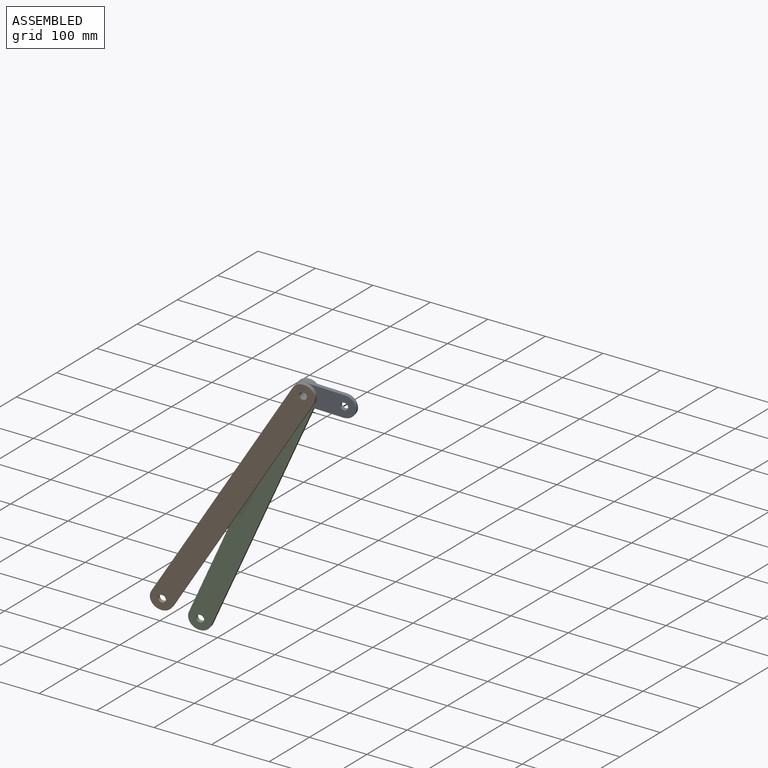
[diagram: assembled view]
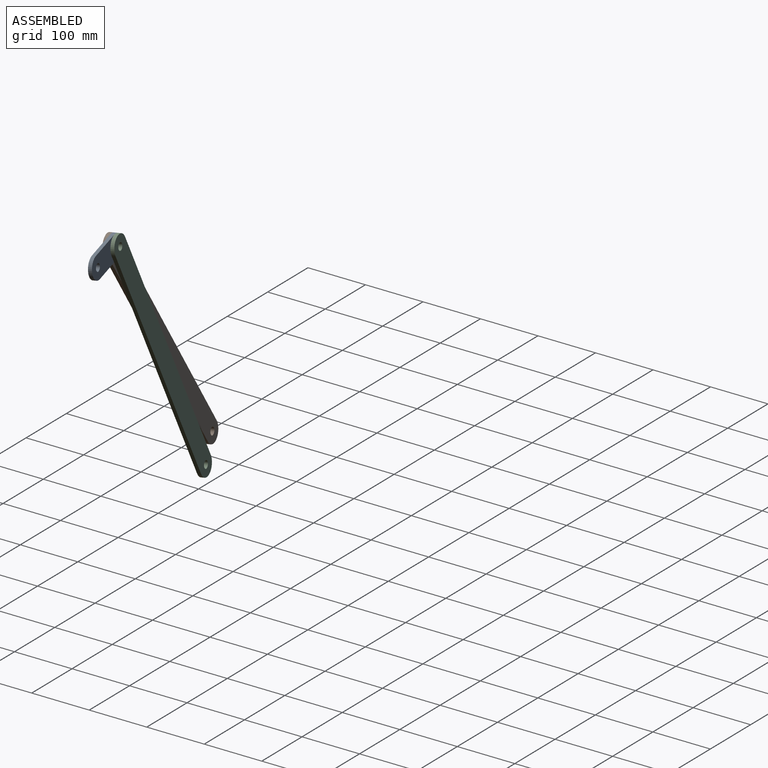
[diagram: assembled view, second angle]
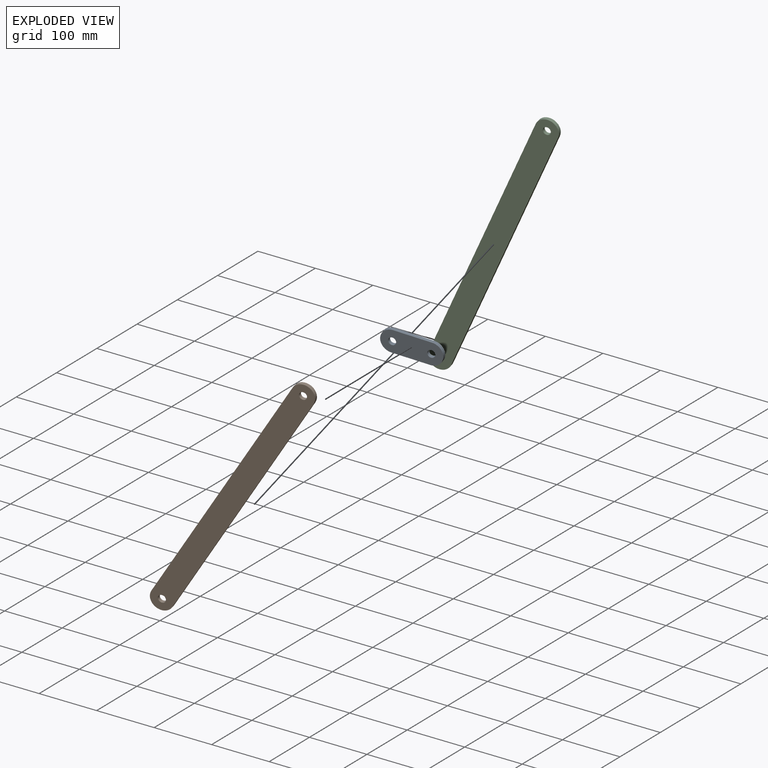
[diagram: exploded view]
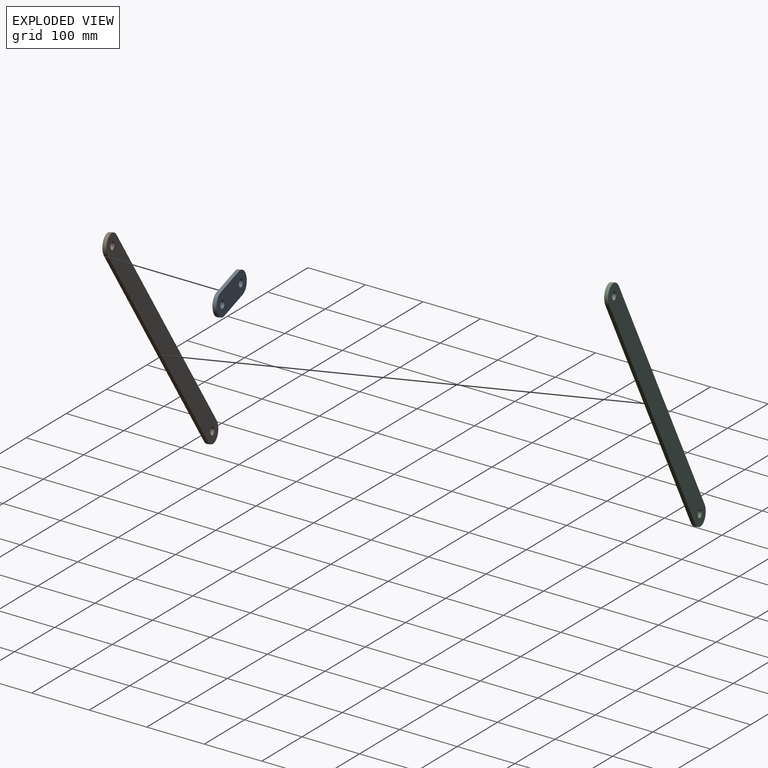
[diagram: exploded view, second angle]
ASSEMBLY  parts=3 mates=2
PART A: 8 faces, bbox 100.2x6.4x38.1 mm
  f0: cylinder r=19.05mm len=38.1mm, axis (0,1,0), area 380mm2, adj f1,f5,f6,f7
  f1: plane 62.05x6.35mm, normal (0,0,-1), area 394mm2, adj f0,f2,f6,f7
  f2: cylinder r=19.05mm len=38.1mm, axis (0,1,0), area 380mm2, adj f1,f5,f6,f7
  f3: cylinder r=6.35mm len=12.7mm, axis (0,1,0), area 253.4mm2, adj f6,f7
  f4: cylinder r=6.35mm len=12.7mm, axis (0,1,0), area 253.4mm2, adj f6,f7
  f5: plane 62.05x6.35mm, normal (0,0,1), area 394mm2, adj f0,f2,f6,f7
  f6: plane 100.15x38.1mm, normal (0,-1,0), area 3250.9mm2, adj f0,f1,f2,f3,f4,f5
  f7: plane 100.15x38.1mm, normal (0,1,0), area 3250.9mm2, adj f0,f1,f2,f3,f4,f5
PART B: 8 faces, bbox 495.3x6.4x38.1 mm
  f0: cylinder r=19.05mm len=38.1mm, axis (0,1,0), area 380mm2, adj f1,f5,f6,f7
  f1: plane 457.2x6.35mm, normal (0,0,-1), area 2903.2mm2, adj f0,f2,f6,f7
  f2: cylinder r=19.05mm len=38.1mm, axis (0,1,0), area 380mm2, adj f1,f5,f6,f7
  f3: cylinder r=6.35mm len=12.7mm, axis (0,1,0), area 253.4mm2, adj f6,f7
  f4: cylinder r=6.35mm len=12.7mm, axis (0,1,0), area 253.4mm2, adj f6,f7
  f5: plane 457.2x6.35mm, normal (0,0,1), area 2903.2mm2, adj f0,f2,f6,f7
  f6: plane 495.3x38.1mm, normal (0,-1,0), area 18306.1mm2, adj f0,f1,f2,f3,f4,f5
  f7: plane 495.3x38.1mm, normal (0,1,0), area 18306.1mm2, adj f0,f1,f2,f3,f4,f5
PART C: same geometry as B
PLACE A rot(axis=(0.41,0.57,0.71),13.2deg) t=(-106.06,-51.96,1852.03)mm
PLACE B rot(axis=(0.48,0.08,-0.87),174.9deg) t=(9.13,-24.95,1648.83)mm
PLACE C rot(axis=(0.53,0.09,-0.84),175.6deg) t=(12.65,-12.14,1655.32)mm
MATE revolute C.f0 <-> A.f0  axis (0.16,-0.98,-0.1) through (-28.42,-22.83,1694.21)mm
MATE revolute A.f0 <-> B.f0  axis (-0.16,0.98,0.1) through (-27.42,-29.07,1693.55)mm
